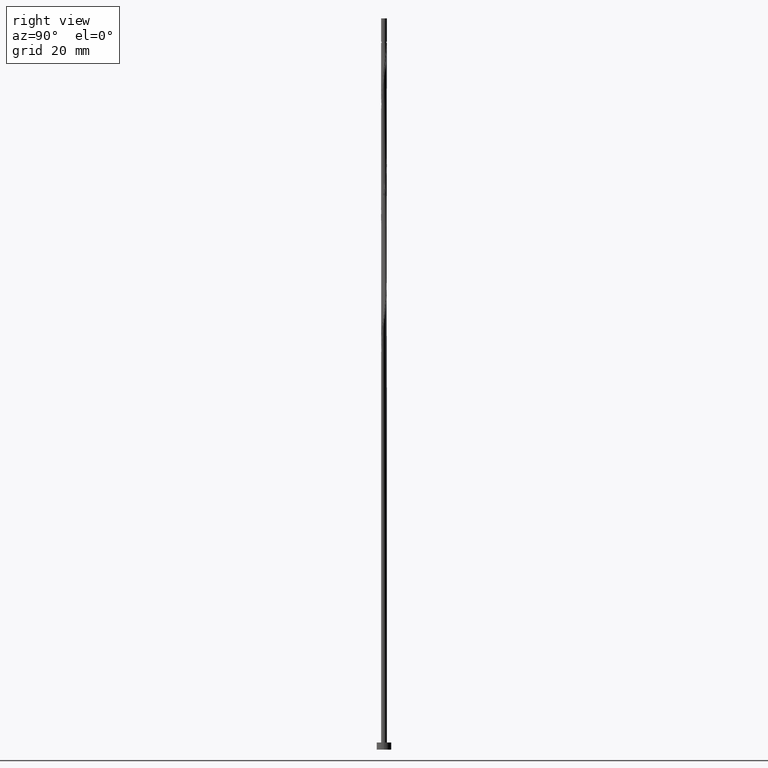
[diagram: clean part render]
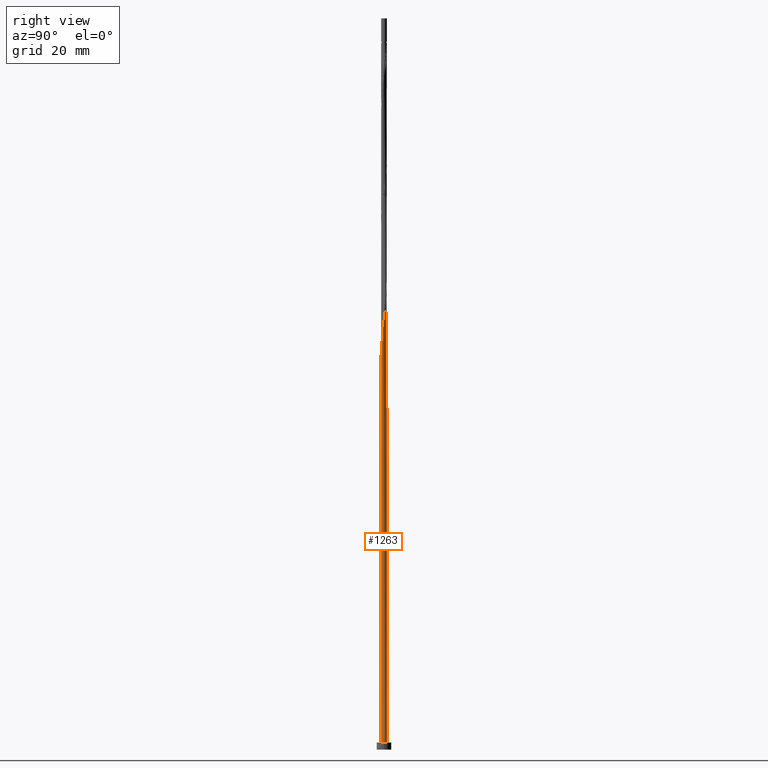
[diagram: same view with one face highlighted and labeled with its STEP entity id]
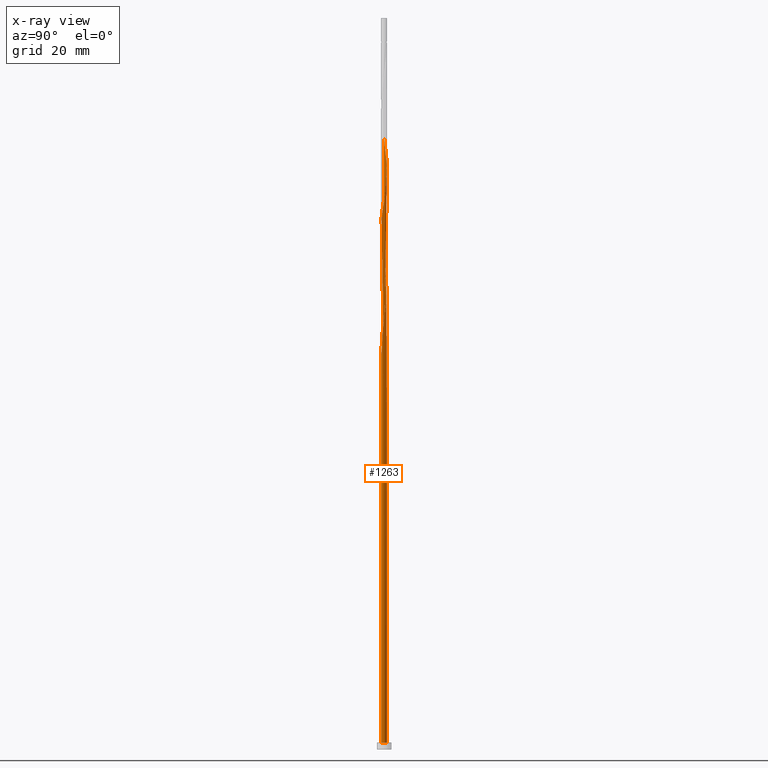
[diagram: x-ray of the same camera — body ghosted, the highlighted face saturated]
A machine part, right view. The second image highlights one B-rep face of the part: STEP entity #1263.
The next image is the same camera in x-ray: the body ghosted, the highlighted face saturated — about 0% of this face is hidden behind the body in this view.
In plain terms, the highlighted cylindrical surface (bore or boss wall) has radius 0.5 mm, axis along (-0, -0, -1).
Its self-contained STEP definition (entity closure, byte-faithful):
#17 = DIRECTION ( 'NONE',  ( -0.000000000000000000, -0.000000000000000000, -1.000000000000000000 ) ) ;
#26 = CARTESIAN_POINT ( 'NONE',  ( -0.4900000000000008238, -0.09949874371066187717, 84.35361331922246109 ) ) ;
#30 = VERTEX_POINT ( 'NONE', #633 ) ;
#38 = ORIENTED_EDGE ( 'NONE', *, *, #1056, .T. ) ;
#41 = CARTESIAN_POINT ( 'NONE',  ( 0.4352708902590740059, 0.2460472558129308540, 95.81194665255578968 ) ) ;
#53 = CARTESIAN_POINT ( 'NONE',  ( 0.5057590528356084025, 0.02189036795163889701, 94.24944665255578968 ) ) ;
#55 = DIRECTION ( 'NONE',  ( 1.000000000000000000, 0.000000000000000000, 0.000000000000000000 ) ) ;
#78 = CARTESIAN_POINT ( 'NONE',  ( -0.2795680327841836288, 0.4220345042522133383, 60.91611331922246819 ) ) ;
#80 = ORIENTED_EDGE ( 'NONE', *, *, #840, .F. ) ;
#86 = CARTESIAN_POINT ( 'NONE',  ( 0.1771071194696847428, -0.4742409471643931895, 69.24944665255580389 ) ) ;
#91 = DIRECTION ( 'NONE',  ( -0.000000000000000000, -0.000000000000000000, -1.000000000000000000 ) ) ;
#103 = CARTESIAN_POINT ( 'NONE',  ( -0.3963008333537548777, 0.3149873921561770485, 61.95777998588914670 ) ) ;
#118 = ORIENTED_EDGE ( 'NONE', *, *, #142, .T. ) ;
#127 = CARTESIAN_POINT ( 'NONE',  ( -0.5000000000000000000, 0.000000000000000000, 125.0000000000000000 ) ) ;
#141 = CARTESIAN_POINT ( 'NONE',  ( 0.2795680327841838508, 0.4220345042522133938, 97.37444665255583232 ) ) ;
#142 = EDGE_CURVE ( 'NONE', #1373, #575, #886, .T. ) ;
#148 = CARTESIAN_POINT ( 'NONE',  ( -0.4967644957101778891, 0.05678939867451808510, 62.47861331922246109 ) ) ;
#157 = CARTESIAN_POINT ( 'NONE',  ( -0.2460472558129308818, 0.4352708902590739504, 59.35361331922248240 ) ) ;
#168 = DIRECTION ( 'NONE',  ( 0.000000000000000000, 0.000000000000000000, 1.000000000000000000 ) ) ;
#175 = CARTESIAN_POINT ( 'NONE',  ( 0.1354691653006752095, 0.4877699385847474867, 98.41611331922246109 ) ) ;
#187 = CARTESIAN_POINT ( 'NONE',  ( -0.4352708902590740059, -0.2460472558129308818, 64.56194665255578968 ) ) ;
#188 = AXIS2_PLACEMENT_3D ( 'NONE', #1052, #168, #55 ) ;
#191 = CARTESIAN_POINT ( 'NONE',  ( 0.5000000000000000000, 0.000000000000000000, 1.199999999999999956 ) ) ;
#196 = CARTESIAN_POINT ( 'NONE',  ( 0.3685109482041951101, -0.3379344330689693088, 70.81194665255580389 ) ) ;
#203 = CARTESIAN_POINT ( 'NONE',  ( -0.5000000000000000000, 0.000000000000000000, 125.0000000000000000 ) ) ;
#205 = CARTESIAN_POINT ( 'NONE',  ( -0.05678939867451809898, -0.4967644957101780001, 67.68694665255583232 ) ) ;
#215 = CARTESIAN_POINT ( 'NONE',  ( -0.02189036795163886925, 0.5057590528356084025, 78.62444665255581810 ) ) ;
#219 = ORIENTED_EDGE ( 'NONE', *, *, #882, .T. ) ;
#223 = CARTESIAN_POINT ( 'NONE',  ( -0.5000000000000003331, -0.05025189076296266572, 63.18978211982674509 ) ) ;
#227 = ORIENTED_EDGE ( 'NONE', *, *, #1340, .T. ) ;
#257 = AXIS2_PLACEMENT_3D ( 'NONE', #1360, #1143, #802 ) ;
#270 = CARTESIAN_POINT ( 'NONE',  ( -0.4220345042522134493, 0.2795680327841836843, 102.5827799858891467 ) ) ;
#278 = CARTESIAN_POINT ( 'NONE',  ( 0.3685109482041951101, -0.3379344330689693088, 91.64527998588916091 ) ) ;
#284 = CARTESIAN_POINT ( 'NONE',  ( 0.4967644957101780001, -0.05678939867451812673, 93.72861331922246109 ) ) ;
#292 = CARTESIAN_POINT ( 'NONE',  ( 0.4877699385847474867, -0.1354691653006752095, 93.20777998588914670 ) ) ;
#298 = CARTESIAN_POINT ( 'NONE',  ( -0.5057590528356085136, -0.02189036795163898375, 83.83277998588914670 ) ) ;
#302 = CARTESIAN_POINT ( 'NONE',  ( -0.09949874371066179390, 0.4900000000000008793, 58.31194665255581100 ) ) ;
#303 = CARTESIAN_POINT ( 'NONE',  ( -0.4967644957101778891, 0.05678939867451808510, 104.1452799858891467 ) ) ;
#306 = CARTESIAN_POINT ( 'NONE',  ( -0.2075185990424294191, -0.4549022214184804125, 66.64527998588913249 ) ) ;
#320 = CARTESIAN_POINT ( 'NONE',  ( 0.3149873921561769929, -0.3963008333537549888, 70.29111331922251793 ) ) ;
#330 = CARTESIAN_POINT ( 'NONE',  ( -0.4220345042522134493, 0.2795680327841836843, 81.74944665255580389 ) ) ;
#372 = CARTESIAN_POINT ( 'NONE',  ( -0.09949874371066179390, 0.4900000000000008238, 99.97861331922250372 ) ) ;
#377 = CARTESIAN_POINT ( 'NONE',  ( 0.02189036795163892130, -0.5057590528356084025, 89.04111331922248951 ) ) ;
#396 = CARTESIAN_POINT ( 'NONE',  ( -0.2075185990424294191, -0.4549022214184804125, 87.47861331922244688 ) ) ;
#402 = CARTESIAN_POINT ( 'NONE',  ( -0.4352708902590740059, 0.2460472558129308540, 62.47861331922246109 ) ) ;
#410 = CARTESIAN_POINT ( 'NONE',  ( -0.5000000000000007772, -2.661275744019022674E-16, 62.85547754441888912 ) ) ;
#413 = CARTESIAN_POINT ( 'NONE',  ( -0.05678939867451803652, 0.4967644957101777781, 59.35361331922246819 ) ) ;
#420 = CARTESIAN_POINT ( 'NONE',  ( -0.4900000000000008238, -0.09949874371066187717, 63.52027998588913249 ) ) ;
#427 = CARTESIAN_POINT ( 'NONE',  ( 0.1354691653006752095, 0.4877699385847474867, 77.58277998588916091 ) ) ;
#440 = CARTESIAN_POINT ( 'NONE',  ( -0.5000000000000007772, 0.05025189076296072976, 63.85077785195154831 ) ) ;
#458 = DIRECTION ( 'NONE',  ( -1.000000000000000000, 0.000000000000000000, 0.000000000000000000 ) ) ;
#459 = VECTOR ( 'NONE', #91, 1000.000000000000000 ) ;
#473 = CARTESIAN_POINT ( 'NONE',  ( -0.4742409471643931895, -0.1771071194696847984, 84.87444665255580389 ) ) ;
#491 = CARTESIAN_POINT ( 'NONE',  ( 0.4900000000000008238, 0.09949874371066182166, 94.77027998588913249 ) ) ;
#500 = CARTESIAN_POINT ( 'NONE',  ( -0.1354691653006751817, -0.4877699385847474867, 87.99944665255580389 ) ) ;
#504 = VERTEX_POINT ( 'NONE', #410 ) ;
#512 = EDGE_CURVE ( 'NONE', #1434, #658, #688, .T. ) ;
#515 = CARTESIAN_POINT ( 'NONE',  ( -0.4549022214184804125, 0.2075185990424293636, 82.27027998588913249 ) ) ;
#516 = EDGE_LOOP ( 'NONE', ( #1053, #975, #38, #219, #118, #606, #80, #227, #635 ) ) ;
#533 = CARTESIAN_POINT ( 'NONE',  ( 0.5057590528356084025, 0.02189036795163889701, 73.41611331922247530 ) ) ;
#542 = CARTESIAN_POINT ( 'NONE',  ( -0.2075185990424293636, 0.4549022214184802460, 60.39527998588913249 ) ) ;
#551 = CARTESIAN_POINT ( 'NONE',  ( -0.2795680327841836843, -0.4220345042522134493, 66.12444665255581810 ) ) ;
#556 = VECTOR ( 'NONE', #572, 1000.000000000000000 ) ;
#566 = CARTESIAN_POINT ( 'NONE',  ( -0.4352708902590740059, -0.2460472558129308818, 85.39527998588914670 ) ) ;
#572 = DIRECTION ( 'NONE',  ( -0.000000000000000000, -0.000000000000000000, -1.000000000000000000 ) ) ;
#575 = VERTEX_POINT ( 'NONE', #1354 ) ;
#593 = CARTESIAN_POINT ( 'NONE',  ( 0.4742409471643931895, 0.1771071194696847428, 95.29111331922248951 ) ) ;
#600 = CARTESIAN_POINT ( 'NONE',  ( -0.5000000000000007772, -2.661275744019022674E-16, 62.85547754441888912 ) ) ;
#603 = CARTESIAN_POINT ( 'NONE',  ( 0.09949874371066182166, -0.4900000000000008238, 89.56194665255581810 ) ) ;
#606 = ORIENTED_EDGE ( 'NONE', *, *, #1056, .F. ) ;
#612 = CARTESIAN_POINT ( 'NONE',  ( -0.1771071194696847984, 0.4742409471643931895, 58.83277998588915381 ) ) ;
#632 = CARTESIAN_POINT ( 'NONE',  ( -0.3379344330689693088, -0.3685109482041951101, 65.60361331922247530 ) ) ;
#633 = CARTESIAN_POINT ( 'NONE',  ( -0.09949874371066178003, 0.4900000000000008793, 58.31194665255580389 ) ) ;
#635 = ORIENTED_EDGE ( 'NONE', *, *, #926, .F. ) ;
#640 = CARTESIAN_POINT ( 'NONE',  ( -0.5000000000000008882, -7.496551391602879189E-18, 104.5221442110855463 ) ) ;
#644 = CARTESIAN_POINT ( 'NONE',  ( 0.4220345042522134493, -0.2795680327841838508, 71.33277998588913249 ) ) ;
#654 = CARTESIAN_POINT ( 'NONE',  ( 0.02189036795163892130, -0.5057590528356084025, 68.20777998588916091 ) ) ;
#658 = VERTEX_POINT ( 'NONE', #1183 ) ;
#663 = CARTESIAN_POINT ( 'NONE',  ( -0.2460472558129308818, 0.4352708902590739504, 80.18694665255578968 ) ) ;
#668 = CARTESIAN_POINT ( 'NONE',  ( 0.2460472558129308540, -0.4352708902590740059, 69.77027998588913249 ) ) ;
#688 = LINE ( 'NONE', #127, #556 ) ;
#694 = CIRCLE ( 'NONE', #808, 0.5000000000000000000 ) ;
#711 = CARTESIAN_POINT ( 'NONE',  ( -0.4549022214184804125, 0.2075185990424293636, 61.43694665255581810 ) ) ;
#720 = CARTESIAN_POINT ( 'NONE',  ( -0.4549022214184804125, 0.2075185990424293636, 103.1036133192224611 ) ) ;
#727 = CARTESIAN_POINT ( 'NONE',  ( -0.5000000000000009992, 0.02848686872321449376, 62.66596645521160980 ) ) ;
#736 = CARTESIAN_POINT ( 'NONE',  ( 0.3379344330689694198, 0.3685109482041950546, 96.85361331922247530 ) ) ;
#747 = CARTESIAN_POINT ( 'NONE',  ( -0.1354691653006750429, 0.4877699385847474312, 59.87444665255581100 ) ) ;
#754 =( BOUNDED_CURVE ( )  B_SPLINE_CURVE ( 2, ( #1309, #223, #420, #1336, #187, #867, #632, #551, #306, #989, #205, #654, #973, #86, #668, #320, #196, #644, #964, #1413, #1447, #533, #979, #771, #1429, #1238, #764, #1437, #888, #427, #1232, #215, #1122, #1220, #663, #1107, #1115, #330, #515, #859, #1303, #298, #26, #473, #566, #1358, #1347, #915, #396, #500, #835, #377, #603, #1286, #1400, #1185, #278, #1043, #845, #292, #284, #53, #491, #593, #41, #944, #736, #141, #1191, #175, #1379, #829, #372, #1167, #817, #1274, #1050, #270, #720, #1334, #303, #987, #640 ),
 .UNSPECIFIED., .F., .T. ) 
 B_SPLINE_CURVE_WITH_KNOTS ( ( 3, 2, 2, 2, 2, 2, 2, 2, 2, 2, 2, 2, 2, 2, 2, 2, 2, 2, 2, 2, 2, 2, 2, 2, 2, 2, 2, 2, 2, 2, 2, 2, 2, 2, 2, 2, 2, 2, 2, 2, 2, 3 ),
 ( 0.05453220231385556838, 0.06250000000000000000, 0.07499999999999995559, 0.08750000000000002220, 0.09999999999999997780, 0.1125000000000000444, 0.1250000000000000000, 0.1374999999999999556, 0.1500000000000000222, 0.1624999999999999778, 0.1750000000000000444, 0.1875000000000000000, 0.1999999999999999556, 0.2125000000000000222, 0.2249999999999999778, 0.2375000000000000444, 0.2500000000000000000, 0.2624999999999999556, 0.2750000000000000222, 0.2874999999999999778, 0.3000000000000000444, 0.3125000000000000000, 0.3249999999999999556, 0.3375000000000000222, 0.3499999999999999778, 0.3625000000000000444, 0.3750000000000000000, 0.3874999999999999556, 0.4000000000000000222, 0.4124999999999999778, 0.4250000000000000444, 0.4375000000000000000, 0.4499999999999999556, 0.4625000000000000222, 0.4749999999999999778, 0.4875000000000000444, 0.5000000000000000000, 0.5124999999999999556, 0.5250000000000000222, 0.5374999999999999778, 0.5500000000000000444, 0.5545322023138553602 ),
 .UNSPECIFIED. ) 
 CURVE ( )  GEOMETRIC_REPRESENTATION_ITEM ( )  RATIONAL_B_SPLINE_CURVE ( ( 0.9039174447099374010, 0.9019565955404672541, 0.9090909090909153889, 0.8978984914501314529, 0.9090909090909153889, 0.8978984914501314529, 0.9090909090909153889, 0.8978984914501314529, 0.9090909090909153889, 0.8978984914501314529, 0.9090909090909153889, 0.8978984914501314529, 0.9090909090909153889, 0.8978984914501314529, 0.9090909090909153889, 0.8978984914501314529, 0.9090909090909153889, 0.8978984914501314529, 0.9090909090909153889, 0.8978984914501314529, 0.9090909090909153889, 0.8978984914501314529, 0.9090909090909153889, 0.8978984914501314529, 0.9090909090909153889, 0.8978984914501314529, 0.9090909090909153889, 0.8978984914501314529, 0.9090909090909153889, 0.8978984914501314529, 0.9090909090909153889, 0.8978984914501314529, 0.9090909090909153889, 0.8978984914501314529, 0.9090909090909153889, 0.8978984914501314529, 0.9090909090909153889, 0.8978984914501314529, 0.9090909090909153889, 0.8978984914501314529, 0.9090909090909153889, 0.8978984914501314529, 0.9090909090909153889, 0.8978984914501314529, 0.9090909090909153889, 0.8978984914501314529, 0.9090909090909153889, 0.8978984914501314529, 0.9090909090909153889, 0.8978984914501314529, 0.9090909090909153889, 0.8978984914501314529, 0.9090909090909153889, 0.8978984914501314529, 0.9090909090909153889, 0.8978984914501314529, 0.9090909090909153889, 0.8978984914501314529, 0.9090909090909153889, 0.8978984914501314529, 0.9090909090909153889, 0.8978984914501314529, 0.9090909090909153889, 0.8978984914501314529, 0.9090909090909153889, 0.8978984914501314529, 0.9090909090909153889, 0.8978984914501314529, 0.9090909090909153889, 0.8978984914501314529, 0.9090909090909153889, 0.8978984914501314529, 0.9090909090909153889, 0.8978984914501314529, 0.9090909090909153889, 0.8978984914501314529, 0.9090909090909153889, 0.8978984914501314529, 0.9090909090909153889, 0.8978984914501314529, 0.9090909090909153889, 0.9050328050005795877, 0.9039174447099376231 ) ) 
 REPRESENTATION_ITEM ( '' )  );
#764 = CARTESIAN_POINT ( 'NONE',  ( 0.3379344330689694198, 0.3685109482041950546, 76.02027998588916091 ) ) ;
#771 = CARTESIAN_POINT ( 'NONE',  ( 0.4742409471643931895, 0.1771071194696847428, 74.45777998588917512 ) ) ;
#802 = DIRECTION ( 'NONE',  ( 1.000000000000000000, 0.000000000000000000, 0.000000000000000000 ) ) ;
#808 = AXIS2_PLACEMENT_3D ( 'NONE', #1285, #1273, #1064 ) ;
#817 = CARTESIAN_POINT ( 'NONE',  ( -0.2460472558129308818, 0.4352708902590739504, 101.0202799858891467 ) ) ;
#818 = CARTESIAN_POINT ( 'NONE',  ( -0.4220345042522134493, 0.2795680327841836843, 60.91611331922247530 ) ) ;
#829 = CARTESIAN_POINT ( 'NONE',  ( -0.02189036795163886925, 0.5057590528356084025, 99.45777998588914670 ) ) ;
#835 = CARTESIAN_POINT ( 'NONE',  ( -0.05678939867451809898, -0.4967644957101780001, 88.52027998588916091 ) ) ;
#837 = CARTESIAN_POINT ( 'NONE',  ( -0.3149873921561770485, 0.3963008333537549888, 59.87444665255580389 ) ) ;
#840 = EDGE_CURVE ( 'NONE', #30, #504, #1000, .T. ) ;
#845 = CARTESIAN_POINT ( 'NONE',  ( 0.4549022214184804125, -0.2075185990424294191, 92.68694665255580389 ) ) ;
#859 = CARTESIAN_POINT ( 'NONE',  ( -0.4877699385847473756, 0.1354691653006751262, 82.79111331922251793 ) ) ;
#866 = CYLINDRICAL_SURFACE ( 'NONE', #1125, 0.5000000000000000000 ) ;
#867 = CARTESIAN_POINT ( 'NONE',  ( -0.3963008333537549888, -0.3149873921561770485, 65.08277998588914670 ) ) ;
#882 = EDGE_CURVE ( 'NONE', #575, #1373, #1157, .T. ) ;
#885 = LINE ( 'NONE', #203, #459 ) ;
#886 = CIRCLE ( 'NONE', #257, 0.5000000000000000000 ) ;
#888 = CARTESIAN_POINT ( 'NONE',  ( 0.2075185990424294746, 0.4549022214184804125, 77.06194665255580389 ) ) ;
#915 = CARTESIAN_POINT ( 'NONE',  ( -0.2795680327841836843, -0.4220345042522134493, 86.95777998588914670 ) ) ;
#926 = EDGE_CURVE ( 'NONE', #658, #1366, #1165, .T. ) ;
#944 = CARTESIAN_POINT ( 'NONE',  ( 0.3963008333537550443, 0.3149873921561769929, 96.33277998588916091 ) ) ;
#945 = EDGE_CURVE ( 'NONE', #504, #1434, #754, .T. ) ;
#964 = CARTESIAN_POINT ( 'NONE',  ( 0.4549022214184804125, -0.2075185990424294191, 71.85361331922243266 ) ) ;
#970 = FACE_OUTER_BOUND ( 'NONE', #516, .T. ) ;
#973 = CARTESIAN_POINT ( 'NONE',  ( 0.09949874371066182166, -0.4900000000000008238, 68.72861331922247530 ) ) ;
#975 = ORIENTED_EDGE ( 'NONE', *, *, #945, .F. ) ;
#979 = CARTESIAN_POINT ( 'NONE',  ( 0.4900000000000008238, 0.09949874371066182166, 73.93694665255581810 ) ) ;
#987 = CARTESIAN_POINT ( 'NONE',  ( -0.5000000000000008882, 0.02848686872321579827, 104.3326331218782741 ) ) ;
#989 = CARTESIAN_POINT ( 'NONE',  ( -0.1354691653006751817, -0.4877699385847474867, 67.16611331922247530 ) ) ;
#1000 =( BOUNDED_CURVE ( )  B_SPLINE_CURVE ( 2, ( #302, #612, #157, #837, #1068, #818, #711, #1287, #148, #727, #600 ),
 .UNSPECIFIED., .F., .T. ) 
 B_SPLINE_CURVE_WITH_KNOTS ( ( 3, 2, 2, 2, 2, 3 ),
 ( 0.000000000000000000, 0.01249999999999995559, 0.02500000000000002220, 0.03749999999999997780, 0.05000000000000004441, 0.05453220231385557532 ),
 .UNSPECIFIED. ) 
 CURVE ( )  GEOMETRIC_REPRESENTATION_ITEM ( )  RATIONAL_B_SPLINE_CURVE ( ( 0.9090909090909153889, 0.8978984914501314529, 0.9090909090909153889, 0.8978984914501314529, 0.9090909090909153889, 0.8978984914501314529, 0.9090909090909153889, 0.8978984914501314529, 0.9090909090909153889, 0.9050328050005794767, 0.9039174447099374010 ) ) 
 REPRESENTATION_ITEM ( '' )  );
#1043 = CARTESIAN_POINT ( 'NONE',  ( 0.4220345042522134493, -0.2795680327841838508, 92.16611331922251793 ) ) ;
#1050 = CARTESIAN_POINT ( 'NONE',  ( -0.3685109482041951656, 0.3379344330689693088, 102.0619466525558039 ) ) ;
#1052 = CARTESIAN_POINT ( 'NONE',  ( 0.000000000000000000, 0.000000000000000000, 1.199999999999999956 ) ) ;
#1053 = ORIENTED_EDGE ( 'NONE', *, *, #512, .F. ) ;
#1056 = EDGE_CURVE ( 'NONE', #504, #575, #885, .T. ) ;
#1064 = DIRECTION ( 'NONE',  ( -1.000000000000000000, 0.000000000000000000, 0.000000000000000000 ) ) ;
#1068 = CARTESIAN_POINT ( 'NONE',  ( -0.3685109482041951656, 0.3379344330689693088, 60.39527998588913960 ) ) ;
#1090 = CARTESIAN_POINT ( 'NONE',  ( -0.3379344330689693088, 0.3685109482041951101, 61.43694665255580389 ) ) ;
#1097 = CARTESIAN_POINT ( 'NONE',  ( -0.4900000000000007683, 0.09949874371066191880, 63.52027998588913249 ) ) ;
#1107 = CARTESIAN_POINT ( 'NONE',  ( -0.3149873921561770485, 0.3963008333537549888, 80.70777998588914670 ) ) ;
#1115 = CARTESIAN_POINT ( 'NONE',  ( -0.3685109482041951656, 0.3379344330689693088, 81.22861331922248951 ) ) ;
#1122 = CARTESIAN_POINT ( 'NONE',  ( -0.09949874371066179390, 0.4900000000000008238, 79.14527998588913249 ) ) ;
#1125 = AXIS2_PLACEMENT_3D ( 'NONE', #1317, #17, #458 ) ;
#1143 = DIRECTION ( 'NONE',  ( 0.000000000000000000, 0.000000000000000000, 1.000000000000000000 ) ) ;
#1157 = CIRCLE ( 'NONE', #188, 0.5000000000000000000 ) ;
#1165 =( BOUNDED_CURVE ( )  B_SPLINE_CURVE ( 2, ( #1422, #440, #1097, #1318, #402, #103, #1090, #78, #542, #747, #413, #1208, #1326 ),
 .UNSPECIFIED., .F., .T. ) 
 B_SPLINE_CURVE_WITH_KNOTS ( ( 3, 2, 2, 2, 2, 2, 3 ),
 ( 0.9295322023138552492, 0.9375000000000000000, 0.9499999999999999556, 0.9625000000000000222, 0.9749999999999999778, 0.9875000000000000444, 1.000000000000000000 ),
 .UNSPECIFIED. ) 
 CURVE ( )  GEOMETRIC_REPRESENTATION_ITEM ( )  RATIONAL_B_SPLINE_CURVE ( ( 0.9039174447099372900, 0.9019565955404666990, 0.9090909090909150558, 0.8978984914501311199, 0.9090909090909150558, 0.8978984914501311199, 0.9090909090909150558, 0.8978984914501311199, 0.9090909090909150558, 0.8978984914501311199, 0.9090909090909150558, 0.8978984914501311199, 0.9090909090909150558 ) ) 
 REPRESENTATION_ITEM ( '' )  );
#1167 = CARTESIAN_POINT ( 'NONE',  ( -0.1771071194696847984, 0.4742409471643931895, 100.4994466525558323 ) ) ;
#1183 = CARTESIAN_POINT ( 'NONE',  ( -0.5000000000000007772, 3.335965369263282895E-16, 64.18508242735939007 ) ) ;
#1185 = CARTESIAN_POINT ( 'NONE',  ( 0.3149873921561769929, -0.3963008333537549888, 91.12444665255583232 ) ) ;
#1191 = CARTESIAN_POINT ( 'NONE',  ( 0.2075185990424294746, 0.4549022214184804125, 97.89527998588913249 ) ) ;
#1199 = CARTESIAN_POINT ( 'NONE',  ( -0.5000000000000008882, -7.496551391602879189E-18, 104.5221442110855463 ) ) ;
#1208 = CARTESIAN_POINT ( 'NONE',  ( 0.02189036795163901497, 0.5057590528356085136, 58.83277998588913249 ) ) ;
#1210 = CARTESIAN_POINT ( 'NONE',  ( 0.09949874371066201595, 0.4900000000000007683, 58.31194665255580389 ) ) ;
#1220 = CARTESIAN_POINT ( 'NONE',  ( -0.1771071194696847984, 0.4742409471643931895, 79.66611331922250372 ) ) ;
#1232 = CARTESIAN_POINT ( 'NONE',  ( 0.05678939867451817530, 0.4967644957101780001, 78.10361331922246109 ) ) ;
#1238 = CARTESIAN_POINT ( 'NONE',  ( 0.3963008333537550443, 0.3149873921561769929, 75.49944665255581810 ) ) ;
#1263 = ADVANCED_FACE ( 'NONE', ( #970 ), #866, .T. ) ;
#1273 = DIRECTION ( 'NONE',  ( 0.000000000000000000, -0.000000000000000000, -1.000000000000000000 ) ) ;
#1274 = CARTESIAN_POINT ( 'NONE',  ( -0.3149873921561770485, 0.3963008333537549888, 101.5411133192224895 ) ) ;
#1285 = CARTESIAN_POINT ( 'NONE',  ( 0.000000000000000000, 0.000000000000000000, 58.31194665255581810 ) ) ;
#1286 = CARTESIAN_POINT ( 'NONE',  ( 0.1771071194696847428, -0.4742409471643931895, 90.08277998588913249 ) ) ;
#1287 = CARTESIAN_POINT ( 'NONE',  ( -0.4877699385847473756, 0.1354691653006751262, 61.95777998588914670 ) ) ;
#1303 = CARTESIAN_POINT ( 'NONE',  ( -0.4967644957101778891, 0.05678939867451808510, 83.31194665255580389 ) ) ;
#1309 = CARTESIAN_POINT ( 'NONE',  ( -0.5000000000000007772, -2.661275744019022674E-16, 62.85547754441888912 ) ) ;
#1317 = CARTESIAN_POINT ( 'NONE',  ( 0.000000000000000000, 0.000000000000000000, 125.0000000000000000 ) ) ;
#1318 = CARTESIAN_POINT ( 'NONE',  ( -0.4742409471643931340, 0.1771071194696848261, 62.99944665255581810 ) ) ;
#1326 = CARTESIAN_POINT ( 'NONE',  ( 0.09949874371066202983, 0.4900000000000007683, 58.31194665255580389 ) ) ;
#1334 = CARTESIAN_POINT ( 'NONE',  ( -0.4877699385847473756, 0.1354691653006751262, 103.6244466525558181 ) ) ;
#1336 = CARTESIAN_POINT ( 'NONE',  ( -0.4742409471643931895, -0.1771071194696847984, 64.04111331922247530 ) ) ;
#1340 = EDGE_CURVE ( 'NONE', #30, #1366, #694, .T. ) ;
#1347 = CARTESIAN_POINT ( 'NONE',  ( -0.3379344330689693088, -0.3685109482041951101, 86.43694665255580389 ) ) ;
#1354 = CARTESIAN_POINT ( 'NONE',  ( -0.5000000000000000000, 0.000000000000000000, 1.199999999999999956 ) ) ;
#1358 = CARTESIAN_POINT ( 'NONE',  ( -0.3963008333537549888, -0.3149873921561770485, 85.91611331922247530 ) ) ;
#1360 = CARTESIAN_POINT ( 'NONE',  ( 0.000000000000000000, 0.000000000000000000, 1.199999999999999956 ) ) ;
#1366 = VERTEX_POINT ( 'NONE', #1210 ) ;
#1373 = VERTEX_POINT ( 'NONE', #191 ) ;
#1379 = CARTESIAN_POINT ( 'NONE',  ( 0.05678939867451817530, 0.4967644957101780001, 98.93694665255580389 ) ) ;
#1400 = CARTESIAN_POINT ( 'NONE',  ( 0.2460472558129308540, -0.4352708902590740059, 90.60361331922244688 ) ) ;
#1413 = CARTESIAN_POINT ( 'NONE',  ( 0.4877699385847474867, -0.1354691653006752095, 72.37444665255580389 ) ) ;
#1422 = CARTESIAN_POINT ( 'NONE',  ( -0.5000000000000007772, 3.335965369263282895E-16, 64.18508242735939007 ) ) ;
#1429 = CARTESIAN_POINT ( 'NONE',  ( 0.4352708902590740059, 0.2460472558129308540, 74.97861331922244688 ) ) ;
#1434 = VERTEX_POINT ( 'NONE', #1199 ) ;
#1437 = CARTESIAN_POINT ( 'NONE',  ( 0.2795680327841838508, 0.4220345042522133938, 76.54111331922247530 ) ) ;
#1447 = CARTESIAN_POINT ( 'NONE',  ( 0.4967644957101780001, -0.05678939867451812673, 72.89527998588916091 ) ) ;